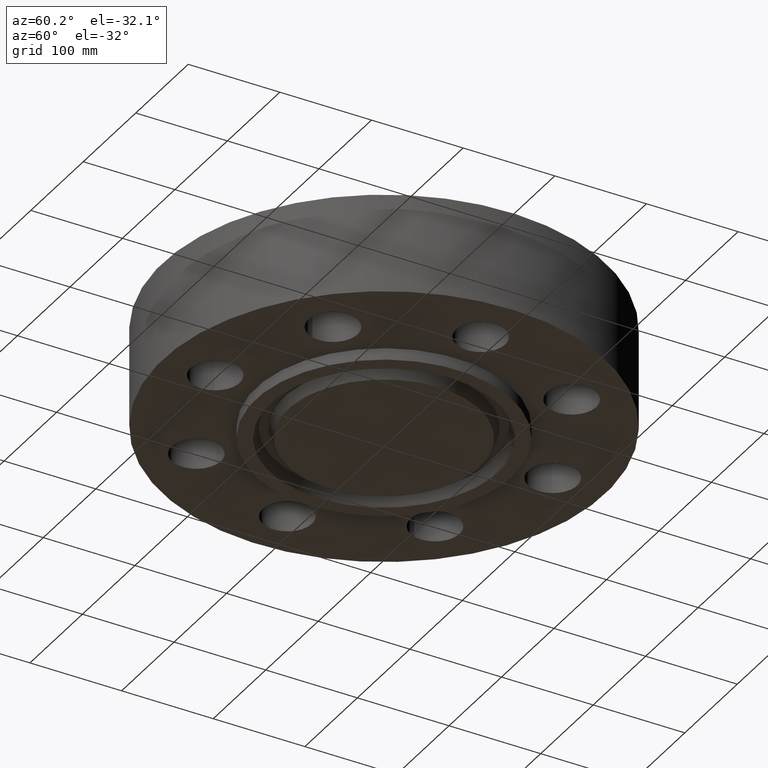
[diagram: clean part render]
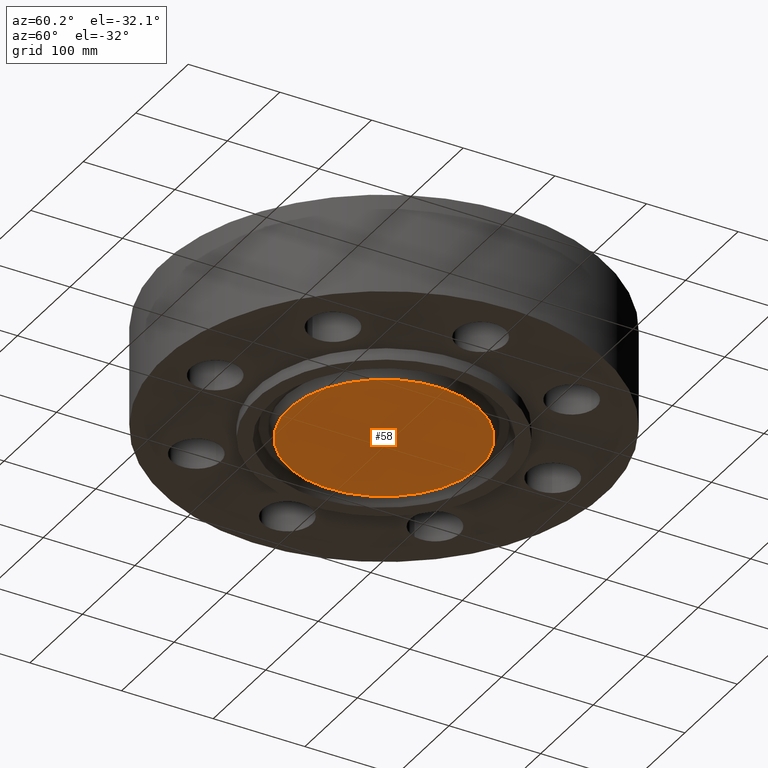
[diagram: same view with one face highlighted and labeled with its STEP entity id]
A machine part, auxiliary view. The second image highlights one B-rep face of the part: STEP entity #58.
In plain terms, the highlighted planar face has unit normal (0, 0, -1).
Its self-contained STEP definition (entity closure, byte-faithful):
#38=AXIS2_PLACEMENT_3D('Plane Axis2P3D',#35,#36,#37) ;
#42=AXIS2_PLACEMENT_3D('Circle Axis2P3D',#40,#41,$) ;
#51=AXIS2_PLACEMENT_3D('Circle Axis2P3D',#49,#50,$) ;
#35=CARTESIAN_POINT('Axis2P3D Location',(0.,0.,-0.500000000002)) ;
#40=CARTESIAN_POINT('Axis2P3D Location',(0.,0.,-0.500000000002)) ;
#44=CARTESIAN_POINT('Vertex',(-1.9701992509,3.6064255381,-0.500000000002)) ;
#46=CARTESIAN_POINT('Vertex',(1.9701992509,-3.6064255381,-0.500000000002)) ;
#49=CARTESIAN_POINT('Axis2P3D Location',(5.59482469102E-016,0.,-0.500000000002)) ;
#36=DIRECTION('Axis2P3D Direction',(0.,0.,-0.0393700787402)) ;
#37=DIRECTION('Axis2P3D XDirection',(0.0393700787402,0.,0.)) ;
#41=DIRECTION('Axis2P3D Direction',(0.,0.,-0.0393700787402)) ;
#50=DIRECTION('Axis2P3D Direction',(0.,0.,-0.0393700787402)) ;
#55=ORIENTED_EDGE('',*,*,#48,.T.) ;
#56=ORIENTED_EDGE('',*,*,#53,.T.) ;
#58=ADVANCED_FACE('PartBody',(#57),#39,.T.) ;
#43=CIRCLE('generated circle',#42,4.10950000002) ;
#52=CIRCLE('generated circle',#51,4.10950000002) ;
#48=EDGE_CURVE('',#45,#47,#43,.T.) ;
#53=EDGE_CURVE('',#47,#45,#52,.T.) ;
#54=EDGE_LOOP('',(#55,#56)) ;
#57=FACE_OUTER_BOUND('',#54,.T.) ;
#39=PLANE('',#38) ;
#45=VERTEX_POINT('',#44) ;
#47=VERTEX_POINT('',#46) ;